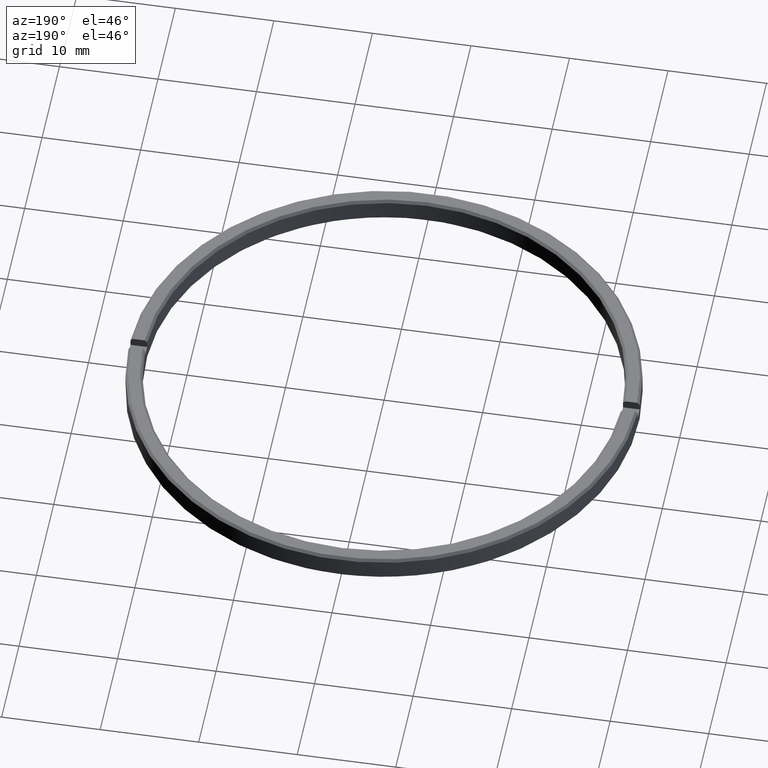
[diagram: clean part render]
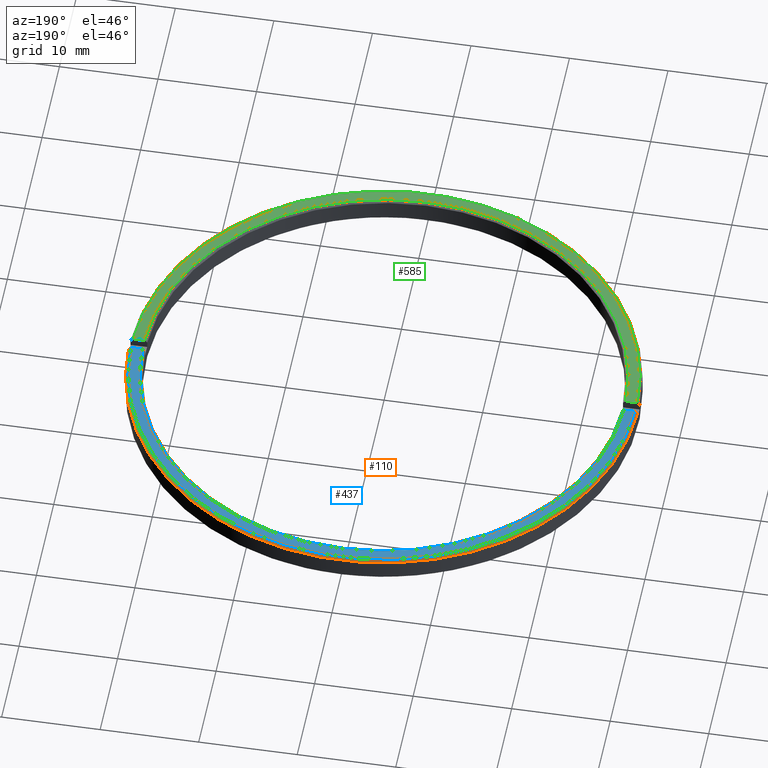
[diagram: same view with three faces highlighted in distinct colors, each labeled with its STEP entity id]
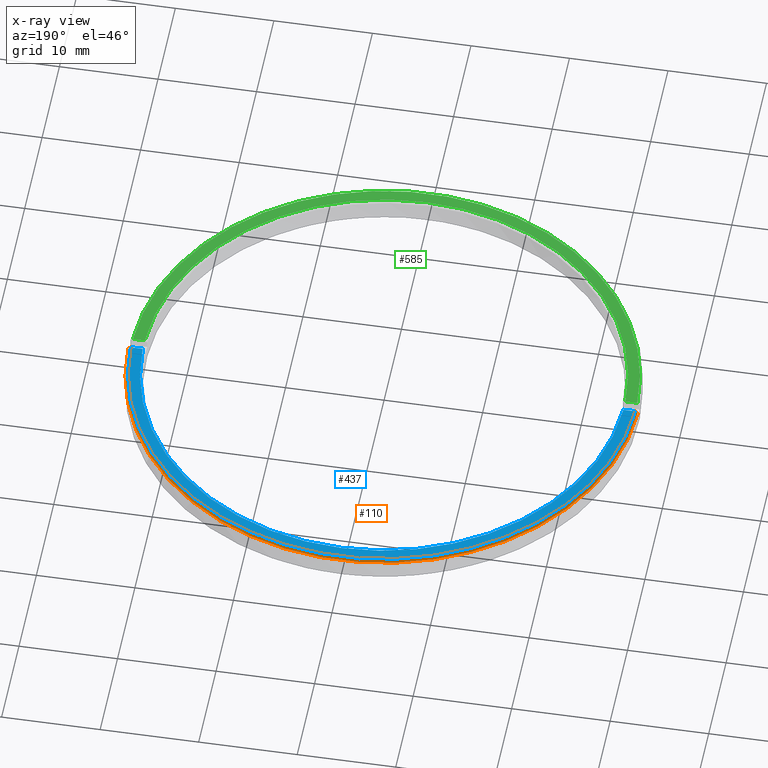
[diagram: x-ray of the same camera — body ghosted, the three highlighted faces saturated]
A machine part, auxiliary view with three faces highlighted in distinct colors.
The next image is the same camera in x-ray (body ghosted, the three faces saturated) — at least one of them is partly hidden behind the body in this view.
Their STEP definitions:

[orange] entity #110 — the highlighted conical surface has half-angle 45 deg.
#13 = CARTESIAN_POINT ( 'NONE',  ( 0.000000000000000000, 7.536886096116588282E-31, -9.920449878242365571E-15 ) ) ;
#20 = CARTESIAN_POINT ( 'NONE',  ( -25.58746627257167106, 0.5999999999998090194, 1.503456963371626880E-13 ) ) ;
#26 = CARTESIAN_POINT ( 'NONE',  ( 6.933347799793970248E-32, 2.775557561562890720E-14, -0.2500000000000279776 ) ) ;
#60 = CARTESIAN_POINT ( 'NONE',  ( -25.83753432992352828, 0.5999999999996008526, -0.2499999999997780109 ) ) ;
#72 = DIRECTION ( 'NONE',  ( 0.000000000000000000, -1.000000000000000000, 0.000000000000000000 ) ) ;
#108 = VERTEX_POINT ( 'NONE', #251 ) ;
#110 = ADVANCED_FACE ( 'NONE', ( #471 ), #510, .T. ) ;
#116 = EDGE_CURVE ( 'NONE', #253, #196, #174, .T. ) ;
#122 = EDGE_CURVE ( 'NONE', #321, #108, #522, .T. ) ;
#142 = EDGE_CURVE ( 'NONE', #196, #321, #562, .T. ) ;
#161 = CARTESIAN_POINT ( 'NONE',  ( 25.67082240249838776, 0.5999999999996008526, -0.08333322249342473009 ) ) ;
#174 = B_SPLINE_CURVE_WITH_KNOTS ( 'NONE', 3,
 ( #60, #426, #194, #20 ),
 .UNSPECIFIED., .F., .F.,
 ( 4, 4 ),
 ( 3.145556022154527739E-16, 0.0003536015176832808370 ),
 .UNSPECIFIED. ) ;
#194 = CARTESIAN_POINT ( 'NONE',  ( -25.67082240249835223, 0.5999999999996008526, -0.08333322249338864784 ) ) ;
#196 = VERTEX_POINT ( 'NONE', #297 ) ;
#234 = EDGE_LOOP ( 'NONE', ( #336, #540, #260, #565 ) ) ;
#242 = DIRECTION ( 'NONE',  ( 0.000000000000000000, 0.000000000000000000, -1.000000000000000000 ) ) ;
#251 = CARTESIAN_POINT ( 'NONE',  ( 25.83753432992370591, 0.5999999999996008526, -0.2499999999997050970 ) ) ;
#253 = VERTEX_POINT ( 'NONE', #269 ) ;
#254 = DIRECTION ( 'NONE',  ( -3.081487911019577365E-32, 3.014754438446559643E-30, -1.000000000000000000 ) ) ;
#255 = AXIS2_PLACEMENT_3D ( 'NONE', #13, #338, #287 ) ;
#260 = ORIENTED_EDGE ( 'NONE', *, *, #122, .T. ) ;
#269 = CARTESIAN_POINT ( 'NONE',  ( -25.83753432992352828, 0.5999999999996008526, -0.2499999999997780109 ) ) ;
#287 = DIRECTION ( 'NONE',  ( -1.000000000000000000, 0.000000000000000000, 0.000000000000000000 ) ) ;
#289 = DIRECTION ( 'NONE',  ( -1.000000000000000000, 0.000000000000000000, 0.000000000000000000 ) ) ;
#297 = CARTESIAN_POINT ( 'NONE',  ( -25.58746627257167106, 0.5999999999998090194, 1.503456963371626880E-13 ) ) ;
#315 = AXIS2_PLACEMENT_3D ( 'NONE', #26, #254, #72 ) ;
#321 = VERTEX_POINT ( 'NONE', #345 ) ;
#329 = CARTESIAN_POINT ( 'NONE',  ( 25.75417842054379847, 0.5999999999996008526, -0.1666665568994196156 ) ) ;
#331 = AXIS2_PLACEMENT_3D ( 'NONE', #566, #242, #289 ) ;
#336 = ORIENTED_EDGE ( 'NONE', *, *, #116, .T. ) ;
#338 = DIRECTION ( 'NONE',  ( 0.000000000000000000, 0.000000000000000000, -1.000000000000000000 ) ) ;
#345 = CARTESIAN_POINT ( 'NONE',  ( 25.58746627257183093, 0.5999999999998090194, -4.960224939121181208E-15 ) ) ;
#421 = CIRCLE ( 'NONE', #315, 25.84450000000000003 ) ;
#426 = CARTESIAN_POINT ( 'NONE',  ( -25.75417842054377715, 0.5999999999996008526, -0.1666665568993989932 ) ) ;
#428 = CARTESIAN_POINT ( 'NONE',  ( 25.58746627257183093, 0.5999999999998090194, -4.960224939121181208E-15 ) ) ;
#471 = FACE_OUTER_BOUND ( 'NONE', #234, .T. ) ;
#474 = CARTESIAN_POINT ( 'NONE',  ( 25.83753432992370591, 0.5999999999996008526, -0.2499999999997050970 ) ) ;
#510 = CONICAL_SURFACE ( 'NONE', #331, 25.84450000000002134, 0.7853981633974630450 ) ;
#522 = B_SPLINE_CURVE_WITH_KNOTS ( 'NONE', 3,
 ( #428, #161, #329, #474 ),
 .UNSPECIFIED., .F., .F.,
 ( 4, 4 ),
 ( 3.733194417655627286E-16, 0.0003536015176831906314 ),
 .UNSPECIFIED. ) ;
#540 = ORIENTED_EDGE ( 'NONE', *, *, #142, .T. ) ;
#562 = CIRCLE ( 'NONE', #255, 25.59450000000001779 ) ;
#565 = ORIENTED_EDGE ( 'NONE', *, *, #569, .F. ) ;
#566 = CARTESIAN_POINT ( 'NONE',  ( 0.000000000000000000, 7.536886096116588282E-31, -0.2500000000000062728 ) ) ;
#569 = EDGE_CURVE ( 'NONE', #253, #108, #421, .T. ) ;

[blue] entity #437 — the highlighted planar face has unit normal (-0, -0, 1).
#2 = AXIS2_PLACEMENT_3D ( 'NONE', #207, #560, #423 ) ;
#7 = LINE ( 'NONE', #375, #263 ) ;
#13 = CARTESIAN_POINT ( 'NONE',  ( 0.000000000000000000, 7.536886096116588282E-31, -9.920449878242365571E-15 ) ) ;
#32 = FACE_OUTER_BOUND ( 'NONE', #372, .T. ) ;
#138 = EDGE_CURVE ( 'NONE', #237, #321, #247, .T. ) ;
#142 = EDGE_CURVE ( 'NONE', #196, #321, #562, .T. ) ;
#150 = DIRECTION ( 'NONE',  ( 1.000000000000000000, -1.138016346203796793E-61, 3.774822690998982272E-32 ) ) ;
#178 = ORIENTED_EDGE ( 'NONE', *, *, #142, .F. ) ;
#182 = ORIENTED_EDGE ( 'NONE', *, *, #227, .T. ) ;
#196 = VERTEX_POINT ( 'NONE', #297 ) ;
#207 = CARTESIAN_POINT ( 'NONE',  ( 0.000000000000000000, -7.536886096115486511E-31, -3.512815038852896158E-14 ) ) ;
#215 = EDGE_CURVE ( 'NONE', #264, #237, #216, .T. ) ;
#216 = CIRCLE ( 'NONE', #2, 24.39999999999996660 ) ;
#227 = EDGE_CURVE ( 'NONE', #196, #264, #7, .T. ) ;
#237 = VERTEX_POINT ( 'NONE', #332 ) ;
#247 = LINE ( 'NONE', #431, #302 ) ;
#255 = AXIS2_PLACEMENT_3D ( 'NONE', #13, #338, #287 ) ;
#263 = VECTOR ( 'NONE', #150, 1000.000000000000000 ) ;
#264 = VERTEX_POINT ( 'NONE', #583 ) ;
#272 = DIRECTION ( 'NONE',  ( 0.000000000000000000, -1.000000000000000000, -3.014754438446559643E-30 ) ) ;
#287 = DIRECTION ( 'NONE',  ( -1.000000000000000000, 0.000000000000000000, 0.000000000000000000 ) ) ;
#297 = CARTESIAN_POINT ( 'NONE',  ( -25.58746627257167106, 0.5999999999998090194, 1.503456963371626880E-13 ) ) ;
#302 = VECTOR ( 'NONE', #508, 1000.000000000000000 ) ;
#316 = DIRECTION ( 'NONE',  ( -3.774822690998982272E-32, -3.014754438446559643E-30, 1.000000000000000000 ) ) ;
#321 = VERTEX_POINT ( 'NONE', #345 ) ;
#326 = ORIENTED_EDGE ( 'NONE', *, *, #215, .T. ) ;
#332 = CARTESIAN_POINT ( 'NONE',  ( 24.39262183530128425, 0.5999999999998090194, 3.398310303013559788E-13 ) ) ;
#338 = DIRECTION ( 'NONE',  ( 0.000000000000000000, 0.000000000000000000, -1.000000000000000000 ) ) ;
#345 = CARTESIAN_POINT ( 'NONE',  ( 25.58746627257183093, 0.5999999999998090194, -4.960224939121181208E-15 ) ) ;
#360 = PLANE ( 'NONE',  #439 ) ;
#372 = EDGE_LOOP ( 'NONE', ( #182, #326, #414, #178 ) ) ;
#375 = CARTESIAN_POINT ( 'NONE',  ( 0.000000000000000000, 0.6000000000000171863, 1.808852663067987704E-30 ) ) ;
#414 = ORIENTED_EDGE ( 'NONE', *, *, #138, .T. ) ;
#423 = DIRECTION ( 'NONE',  ( 0.000000000000000000, -1.000000000000000000, -2.778390739443884912E-30 ) ) ;
#431 = CARTESIAN_POINT ( 'NONE',  ( 0.000000000000000000, 0.6000000000000171863, 1.808852663067987704E-30 ) ) ;
#437 = ADVANCED_FACE ( 'NONE', ( #32 ), #360, .T. ) ;
#439 = AXIS2_PLACEMENT_3D ( 'NONE', #492, #316, #272 ) ;
#492 = CARTESIAN_POINT ( 'NONE',  ( 0.000000000000000000, 0.000000000000000000, 0.000000000000000000 ) ) ;
#508 = DIRECTION ( 'NONE',  ( 1.000000000000000000, -1.138016346203796793E-61, 3.774822690998982272E-32 ) ) ;
#560 = DIRECTION ( 'NONE',  ( -0.000000000000000000, 2.904681227600415756E-30, -1.000000000000000000 ) ) ;
#562 = CIRCLE ( 'NONE', #255, 25.59450000000001779 ) ;
#583 = CARTESIAN_POINT ( 'NONE',  ( -24.39262183529694283, 0.5999999999998090194, -3.999589009980260594E-12 ) ) ;

[green] entity #585 — the highlighted planar face has unit normal (-0, -0, 1).
#9 = VERTEX_POINT ( 'NONE', #59 ) ;
#23 = CARTESIAN_POINT ( 'NONE',  ( 24.39262183530548711, -0.6000000000000171863, 4.550754615721229933E-12 ) ) ;
#25 = CIRCLE ( 'NONE', #57, 25.59450000000001779 ) ;
#44 = DIRECTION ( 'NONE',  ( -1.000000000000000000, 1.138016346203796793E-61, -3.774822690998982272E-32 ) ) ;
#50 = ORIENTED_EDGE ( 'NONE', *, *, #209, .T. ) ;
#57 = AXIS2_PLACEMENT_3D ( 'NONE', #364, #546, #137 ) ;
#59 = CARTESIAN_POINT ( 'NONE',  ( -25.58746627257294648, -0.6000000000000171863, -1.127083620833307837E-12 ) ) ;
#67 = DIRECTION ( 'NONE',  ( 0.000000000000000000, -1.000000000000000000, -3.030971715756962365E-30 ) ) ;
#84 = CARTESIAN_POINT ( 'NONE',  ( 0.000000000000000000, -0.5999999999999894307, -1.808852663067903976E-30 ) ) ;
#99 = ORIENTED_EDGE ( 'NONE', *, *, #470, .T. ) ;
#129 = DIRECTION ( 'NONE',  ( -1.000000000000000000, 1.138016346203796793E-61, -3.774822690998982272E-32 ) ) ;
#134 = AXIS2_PLACEMENT_3D ( 'NONE', #523, #520, #476 ) ;
#137 = DIRECTION ( 'NONE',  ( -1.000000000000000000, 0.000000000000000000, 0.000000000000000000 ) ) ;
#163 = FACE_OUTER_BOUND ( 'NONE', #450, .T. ) ;
#183 = CARTESIAN_POINT ( 'NONE',  ( -24.39262183530128070, -0.6000000000000171863, 3.440289484623940248E-13 ) ) ;
#184 = VECTOR ( 'NONE', #129, 1000.000000000000000 ) ;
#209 = EDGE_CURVE ( 'NONE', #571, #513, #517, .T. ) ;
#226 = LINE ( 'NONE', #584, #184 ) ;
#314 = VERTEX_POINT ( 'NONE', #451 ) ;
#353 = LINE ( 'NONE', #84, #543 ) ;
#364 = CARTESIAN_POINT ( 'NONE',  ( 0.000000000000000000, 7.536886096116588282E-31, -9.920449878242365571E-15 ) ) ;
#383 = CARTESIAN_POINT ( 'NONE',  ( 2.432266328319622584E-62, -7.536886096116156507E-31, -9.974659986866639215E-15 ) ) ;
#440 = PLANE ( 'NONE',  #134 ) ;
#450 = EDGE_LOOP ( 'NONE', ( #567, #50, #99, #550 ) ) ;
#451 = CARTESIAN_POINT ( 'NONE',  ( 25.58746627257132289, -0.6000000000000171863, 4.925344065016858992E-13 ) ) ;
#470 = EDGE_CURVE ( 'NONE', #513, #9, #226, .T. ) ;
#473 = EDGE_CURVE ( 'NONE', #314, #571, #353, .T. ) ;
#476 = DIRECTION ( 'NONE',  ( 0.000000000000000000, -1.000000000000000000, -3.014754438446559643E-30 ) ) ;
#477 = DIRECTION ( 'NONE',  ( -3.157262203913503193E-32, 2.999399093717827902E-30, -1.000000000000000000 ) ) ;
#513 = VERTEX_POINT ( 'NONE', #183 ) ;
#514 = EDGE_CURVE ( 'NONE', #314, #9, #25, .T. ) ;
#517 = CIRCLE ( 'NONE', #568, 24.39999999999999147 ) ;
#520 = DIRECTION ( 'NONE',  ( -3.774822690998982272E-32, -3.014754438446559643E-30, 1.000000000000000000 ) ) ;
#523 = CARTESIAN_POINT ( 'NONE',  ( 0.000000000000000000, 0.000000000000000000, 0.000000000000000000 ) ) ;
#543 = VECTOR ( 'NONE', #44, 1000.000000000000000 ) ;
#546 = DIRECTION ( 'NONE',  ( 0.000000000000000000, 0.000000000000000000, -1.000000000000000000 ) ) ;
#550 = ORIENTED_EDGE ( 'NONE', *, *, #514, .F. ) ;
#567 = ORIENTED_EDGE ( 'NONE', *, *, #473, .T. ) ;
#568 = AXIS2_PLACEMENT_3D ( 'NONE', #383, #477, #67 ) ;
#571 = VERTEX_POINT ( 'NONE', #23 ) ;
#584 = CARTESIAN_POINT ( 'NONE',  ( 0.000000000000000000, -0.5999999999999894307, -1.808852663067903976E-30 ) ) ;
#585 = ADVANCED_FACE ( 'NONE', ( #163 ), #440, .T. ) ;